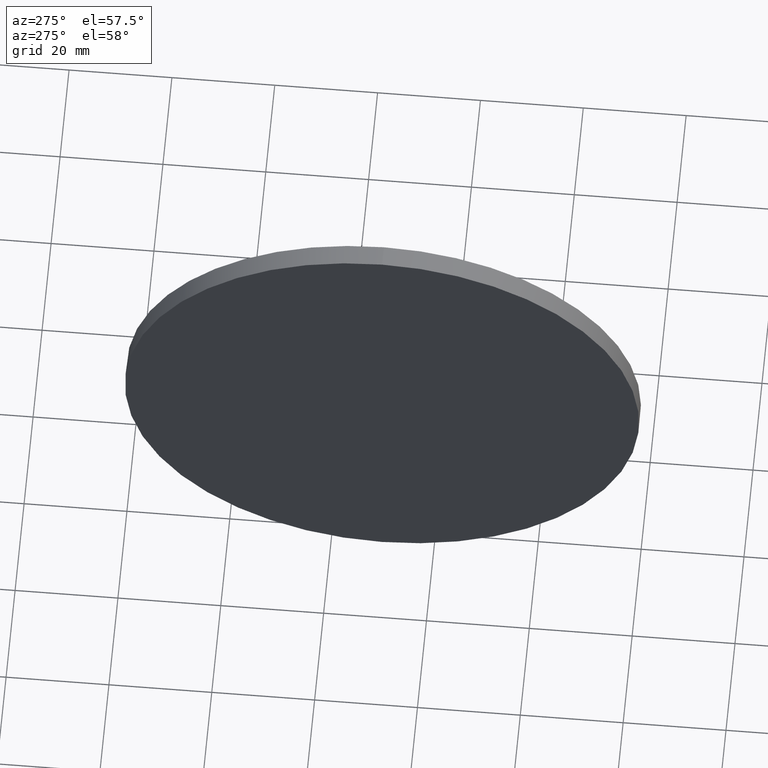
[diagram: clean part render]
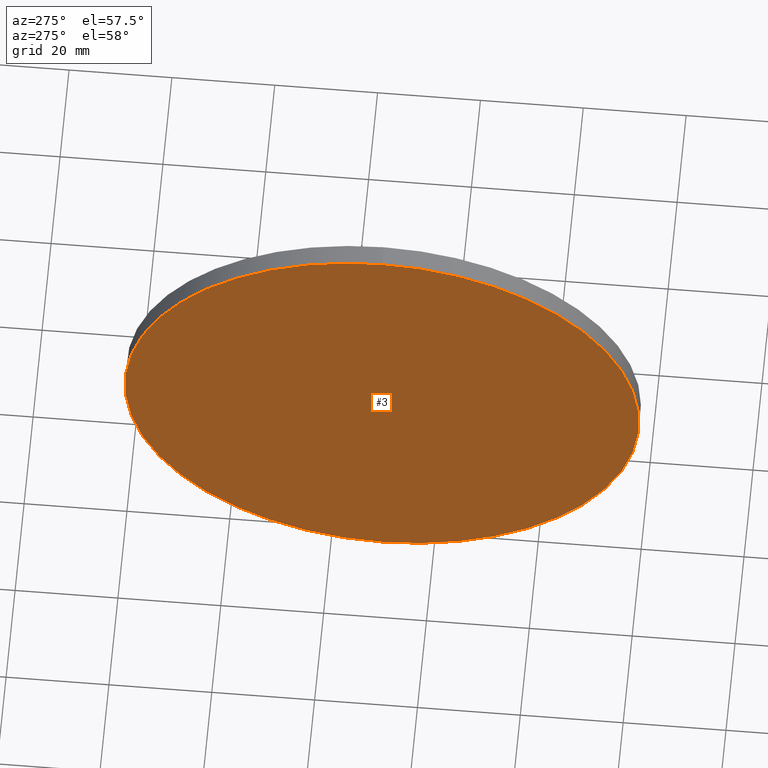
[diagram: same view with one face highlighted and labeled with its STEP entity id]
A machine part, auxiliary view. The second image highlights one B-rep face of the part: STEP entity #3.
In plain terms, the highlighted planar face has unit normal (1, 0, 0).
Its self-contained STEP definition (entity closure, byte-faithful):
#3 = ADVANCED_FACE ( 'NONE', ( #143 ), #49, .F. ) ;
#7 = VERTEX_POINT ( 'NONE', #50 ) ;
#14 = DIRECTION ( 'NONE',  ( 0.0000000000000000000, 0.0000000000000000000, 1.000000000000000000 ) ) ;
#21 = CARTESIAN_POINT ( 'NONE',  ( 235.9389074292314500, 130.0418907599245100, 0.0000000000000000000 ) ) ;
#24 = AXIS2_PLACEMENT_3D ( 'NONE', #98, #134, #86 ) ;
#26 = AXIS2_PLACEMENT_3D ( 'NONE', #21, #180, #92 ) ;
#38 = CIRCLE ( 'NONE', #24, 50.00000000000001400 ) ;
#46 = EDGE_CURVE ( 'NONE', #7, #116, #137, .T. ) ;
#49 = PLANE ( 'NONE',  #26 ) ;
#50 = CARTESIAN_POINT ( 'NONE',  ( 235.9389074292314500, 130.0418907599245100, 50.00000000000001400 ) ) ;
#63 = CARTESIAN_POINT ( 'NONE',  ( 235.9389074292314500, 130.0418907599245100, -50.00000000000001400 ) ) ;
#68 = ORIENTED_EDGE ( 'NONE', *, *, #46, .T. ) ;
#83 = AXIS2_PLACEMENT_3D ( 'NONE', #167, #183, #14 ) ;
#86 = DIRECTION ( 'NONE',  ( 0.0000000000000000000, 0.0000000000000000000, 1.000000000000000000 ) ) ;
#92 = DIRECTION ( 'NONE',  ( 0.0000000000000000000, 0.0000000000000000000, -1.000000000000000000 ) ) ;
#98 = CARTESIAN_POINT ( 'NONE',  ( 235.9389074292314500, 130.0418907599245100, 0.0000000000000000000 ) ) ;
#108 = EDGE_CURVE ( 'NONE', #116, #7, #38, .T. ) ;
#116 = VERTEX_POINT ( 'NONE', #63 ) ;
#134 = DIRECTION ( 'NONE',  ( -1.000000000000000000, -0.0000000000000000000, -0.0000000000000000000 ) ) ;
#137 = CIRCLE ( 'NONE', #83, 50.00000000000001400 ) ;
#143 = FACE_OUTER_BOUND ( 'NONE', #174, .T. ) ;
#152 = ORIENTED_EDGE ( 'NONE', *, *, #108, .T. ) ;
#167 = CARTESIAN_POINT ( 'NONE',  ( 235.9389074292314500, 130.0418907599245100, 0.0000000000000000000 ) ) ;
#174 = EDGE_LOOP ( 'NONE', ( #68, #152 ) ) ;
#180 = DIRECTION ( 'NONE',  ( 1.000000000000000000, 0.0000000000000000000, 0.0000000000000000000 ) ) ;
#183 = DIRECTION ( 'NONE',  ( -1.000000000000000000, -0.0000000000000000000, -0.0000000000000000000 ) ) ;